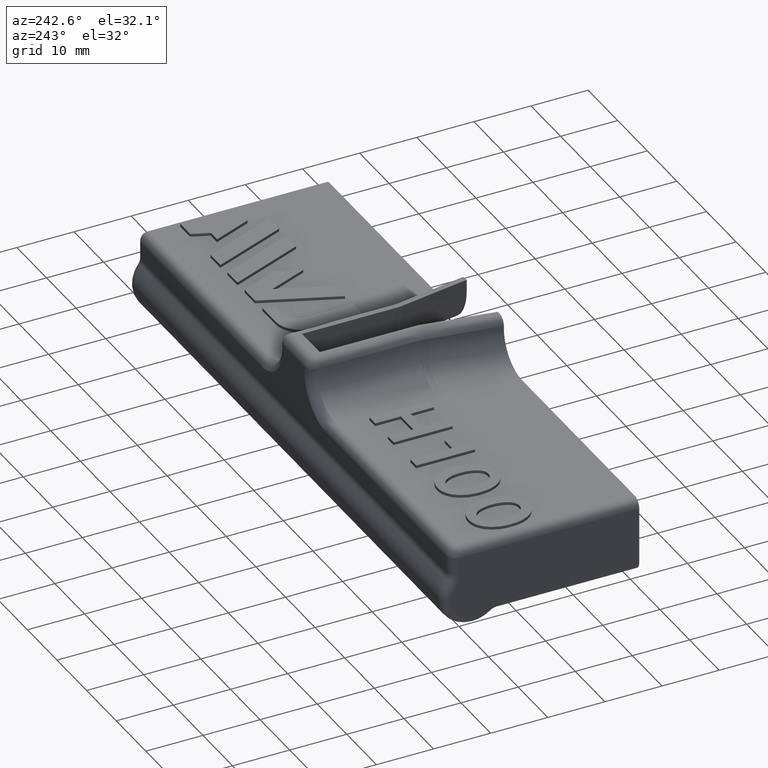
[diagram: clean part render]
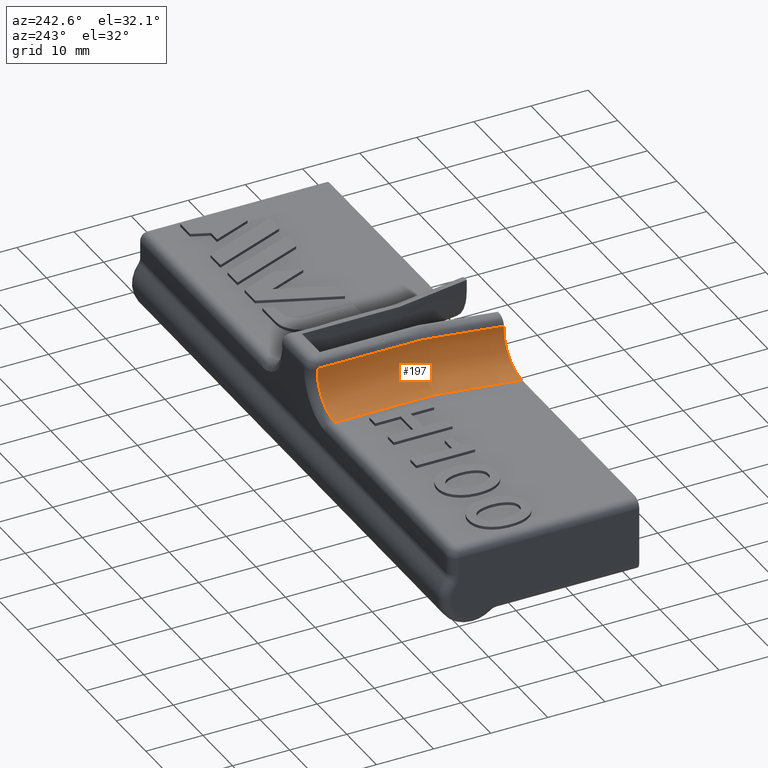
[diagram: same view with one face highlighted and labeled with its STEP entity id]
A machine part, auxiliary view. The second image highlights one B-rep face of the part: STEP entity #197.
In plain terms, the highlighted face is a freeform B-spline surface patch.
Its self-contained STEP definition (entity closure, byte-faithful):
#197=ADVANCED_FACE('',(#412,#413,#414,#415),#416,.T.);
#412=FACE_BOUND('',#1137,.T.);
#413=FACE_BOUND('',#1138,.T.);
#414=FACE_BOUND('',#1139,.T.);
#415=FACE_OUTER_BOUND('',#1140,.T.);
#416=B_SPLINE_SURFACE_WITH_KNOTS('',3,3,((#1141,#1142,#1143,#1144,#1145,#1146,#1147,#1148,#1149,#1150,#1151,#1152,#1153),(#1154,#1155,#1156,#1157,#1158,#1159,#1160,#1161,#1162,#1163,#1164,#1165,#1166),(#1167,#1168,#1169,#1170,#1171,#1172,#1173,#1174,#1175,#1176,#1177,#1178,#1179),(#1180,#1181,#1182,#1183,#1184,#1185,#1186,#1187,#1188,#1189,#1190,#1191,#1192),(#1193,#1194,#1195,#1196,#1197,#1198,#1199,#1200,#1201,#1202,#1203,#1204,#1205),(#1206,#1207,#1208,#1209,#1210,#1211,#1212,#1213,#1214,#1215,#1216,#1217,#1218),(#1219,#1220,#1221,#1222,#1223,#1224,#1225,#1226,#1227,#1228,#1229,#1230,#1231),(#1232,#1233,#1234,#1235,#1236,#1237,#1238,#1239,#1240,#1241,#1242,#1243,#1244),(#1245,#1246,#1247,#1248,#1249,#1250,#1251,#1252,#1253,#1254,#1255,#1256,#1257),(#1258,#1259,#1260,#1261,#1262,#1263,#1264,#1265,#1266,#1267,#1268,#1269,#1270)),.UNSPECIFIED.,.F.,.F.,.F.,(4,3,1,1,1,4),(4,3,1,1,1,3,4),(0.14996038561284,0.2,0.4,0.6,0.8,1.0),(0.0758671364534581,1.0,2.0,3.0,4.0,5.0,5.77251360552884),.UNSPECIFIED.);
#1137=VERTEX_LOOP('',#2431);
#1138=VERTEX_LOOP('',#2432);
#1139=VERTEX_LOOP('',#2433);
#1140=EDGE_LOOP('',(#2434,#2435,#2436,#2437,#2438));
#1141=CARTESIAN_POINT('',(-5.0,31.5490324146694,12.5003961438716));
#1142=CARTESIAN_POINT('',(-5.0,25.6576504881993,12.5003961438716));
#1143=CARTESIAN_POINT('',(-5.0,19.7662685617293,12.5003961438716));
#1144=CARTESIAN_POINT('',(-5.0,13.8748866352593,12.5003961438716));
#1145=CARTESIAN_POINT('',(-5.0,13.7294425338559,12.5003961438716));
#1146=CARTESIAN_POINT('',(-5.00634720316462,13.4385543310491,12.5003961438716));
#1147=CARTESIAN_POINT('',(-5.0348914940124,13.0030526101796,12.5003961438716));
#1148=CARTESIAN_POINT('',(-5.08240493528108,12.5692104749286,12.5003961438716));
#1149=CARTESIAN_POINT('',(-5.12666636671683,12.2816393372819,12.5003961438716));
#1150=CARTESIAN_POINT('',(-5.15192246987793,12.1384048585899,12.5003961438716));
#1151=CARTESIAN_POINT('',(-5.92664267494364,7.74474824431025,12.5003961438716));
#1152=CARTESIAN_POINT('',(-6.70136288000936,3.35109163003056,12.5003961438716));
#1153=CARTESIAN_POINT('',(-7.47608308507507,-1.04256498424913,12.5003961438716));
#1154=CARTESIAN_POINT('',(-5.0,31.5490324146694,12.3335974292477));
#1155=CARTESIAN_POINT('',(-5.0,25.6576504881993,12.3335974292477));
#1156=CARTESIAN_POINT('',(-5.0,19.7662685617293,12.3335974292477));
#1157=CARTESIAN_POINT('',(-5.0,13.8748866352593,12.3335974292477));
#1158=CARTESIAN_POINT('',(-5.0,13.7294425338559,12.3335974292477));
#1159=CARTESIAN_POINT('',(-5.00634720316462,13.4385543310491,12.3335974292477));
#1160=CARTESIAN_POINT('',(-5.03489149401241,13.0030526101796,12.3335974292477));
#1161=CARTESIAN_POINT('',(-5.08240493528108,12.5692104749286,12.3335974292477));
#1162=CARTESIAN_POINT('',(-5.12666636671683,12.2816393372819,12.3335974292477));
#1163=CARTESIAN_POINT('',(-5.15192246987793,12.1384048585899,12.3335974292477));
#1164=CARTESIAN_POINT('',(-5.92664267494364,7.74474824431025,12.3335974292477));
#1165=CARTESIAN_POINT('',(-6.70136288000936,3.35109163003056,12.3335974292477));
#1166=CARTESIAN_POINT('',(-7.47608308507507,-1.04256498424913,12.3335974292477));
#1167=CARTESIAN_POINT('',(-5.0,31.5490324146694,12.1667987146239));
#1168=CARTESIAN_POINT('',(-5.0,25.6576504881993,12.1667987146239));
#1169=CARTESIAN_POINT('',(-5.0,19.7662685617293,12.1667987146239));
#1170=CARTESIAN_POINT('',(-5.0,13.8748866352593,12.1667987146239));
#1171=CARTESIAN_POINT('',(-5.0,13.7294425338559,12.1667987146239));
#1172=CARTESIAN_POINT('',(-5.00634720316462,13.4385543310491,12.1667987146239));
#1173=CARTESIAN_POINT('',(-5.03489149401241,13.0030526101796,12.1667987146239));
#1174=CARTESIAN_POINT('',(-5.08240493528108,12.5692104749286,12.1667987146239));
#1175=CARTESIAN_POINT('',(-5.12666636671683,12.2816393372819,12.1667987146239));
#1176=CARTESIAN_POINT('',(-5.15192246987793,12.1384048585899,12.1667987146239));
#1177=CARTESIAN_POINT('',(-5.92664267494364,7.74474824431025,12.1667987146239));
#1178=CARTESIAN_POINT('',(-6.70136288000936,3.35109163003056,12.1667987146239));
#1179=CARTESIAN_POINT('',(-7.47608308507507,-1.04256498424913,12.1667987146239));
#1180=CARTESIAN_POINT('',(-5.0,31.5490324146694,12.0));
#1181=CARTESIAN_POINT('',(-5.0,25.6576504881993,12.0));
#1182=CARTESIAN_POINT('',(-5.0,19.7662685617293,12.0));
#1183=CARTESIAN_POINT('',(-5.0,13.8748866352593,12.0));
#1184=CARTESIAN_POINT('',(-5.0,13.7294425338559,12.0));
#1185=CARTESIAN_POINT('',(-5.00634720316462,13.4385543310491,12.0));
#1186=CARTESIAN_POINT('',(-5.03489149401241,13.0030526101796,12.0));
#1187=CARTESIAN_POINT('',(-5.08240493528108,12.5692104749286,12.0));
#1188=CARTESIAN_POINT('',(-5.12666636671683,12.2816393372819,12.0));
#1189=CARTESIAN_POINT('',(-5.15192246987793,12.1384048585899,12.0));
#1190=CARTESIAN_POINT('',(-5.92664267494364,7.74474824431025,12.0));
#1191=CARTESIAN_POINT('',(-6.70136288000936,3.35109163003056,12.0));
#1192=CARTESIAN_POINT('',(-7.47608308507507,-1.04256498424913,12.0));
#1193=CARTESIAN_POINT('',(-5.0,31.5490324146694,11.21470752517));
#1194=CARTESIAN_POINT('',(-5.0,25.6576504881993,11.21470752517));
#1195=CARTESIAN_POINT('',(-5.0,19.7662685617293,11.21470752517));
#1196=CARTESIAN_POINT('',(-5.0,13.8748866352593,11.21470752517));
#1197=CARTESIAN_POINT('',(-5.0,13.7294425338559,11.21470752517));
#1198=CARTESIAN_POINT('',(-5.00634720316463,13.4385543310491,11.21470752517));
#1199=CARTESIAN_POINT('',(-5.03489149401241,13.0030526101796,11.21470752517));
#1200=CARTESIAN_POINT('',(-5.08240493528109,12.5692104749286,11.21470752517));
#1201=CARTESIAN_POINT('',(-5.12666636671684,12.2816393372819,11.21470752517));
#1202=CARTESIAN_POINT('',(-5.15192246987794,12.1384048585899,11.21470752517));
#1203=CARTESIAN_POINT('',(-5.92664267494365,7.74474824431025,11.21470752517));
#1204=CARTESIAN_POINT('',(-6.70136288000937,3.35109163003056,11.21470752517));
#1205=CARTESIAN_POINT('',(-7.47608308507508,-1.04256498424913,11.21470752517));
#1206=CARTESIAN_POINT('',(-5.31240877050774,31.5490324146694,9.64412257551001));
#1207=CARTESIAN_POINT('',(-5.31240877050774,25.6576504881993,9.64412257551001));
#1208=CARTESIAN_POINT('',(-5.31240877050774,19.7662685617293,9.64412257551001));
#1209=CARTESIAN_POINT('',(-5.31240877050774,13.8748866352593,9.64412257551001));
#1210=CARTESIAN_POINT('',(-5.31240877050774,13.7339870562708,9.64412257551001));
#1211=CARTESIAN_POINT('',(-5.31855767700646,13.4521854254732,9.64412257551001));
#1212=CARTESIAN_POINT('',(-5.34621023929834,13.0302894711352,9.64412257551));
#1213=CARTESIAN_POINT('',(-5.39223924519851,12.6100012472887,9.64412257551001));
#1214=CARTESIAN_POINT('',(-5.43511809405757,12.3314130700598,9.64412257551001));
#1215=CARTESIAN_POINT('',(-5.45958504918296,12.1926540722758,9.64412257551001));
#1216=CARTESIAN_POINT('',(-6.23430525424867,7.79899745799608,9.64412257551002));
#1217=CARTESIAN_POINT('',(-7.00902545931439,3.40534084371639,9.64412257551001));
#1218=CARTESIAN_POINT('',(-7.78374566438011,-0.988315770563292,9.64412257551001));
#1219=CARTESIAN_POINT('',(-6.64690613281665,31.5490324146694,7.64690613281662));
#1220=CARTESIAN_POINT('',(-6.64690613281665,25.6576504881993,7.64690613281662));
#1221=CARTESIAN_POINT('',(-6.64690613281665,19.7662685617293,7.64690613281662));
#1222=CARTESIAN_POINT('',(-6.64690613281665,13.8748866352593,7.64690613281662));
#1223=CARTESIAN_POINT('',(-6.64690613281665,13.7533996136256,7.64690613281662));
#1224=CARTESIAN_POINT('',(-6.65220798762356,13.5104125345422,7.64690613281662));
#1225=CARTESIAN_POINT('',(-6.67605140779752,13.146635497669,7.64690613281661));
#1226=CARTESIAN_POINT('',(-6.71573944228201,12.7842446849257,7.64690613281662));
#1227=CARTESIAN_POINT('',(-6.75271239804223,12.5440284681373,7.64690613281662));
#1228=CARTESIAN_POINT('',(-6.77380839795912,12.424387107342,7.64690613281662));
#1229=CARTESIAN_POINT('',(-7.54852860302483,8.03073049306235,7.64690613281662));
#1230=CARTESIAN_POINT('',(-8.32324880809055,3.63707387878266,7.64690613281662));
#1231=CARTESIAN_POINT('',(-9.09796901315626,-0.756582735497025,7.64690613281662));
#1232=CARTESIAN_POINT('',(-8.64412257551004,31.5490324146694,6.31240877050773));
#1233=CARTESIAN_POINT('',(-8.64412257551004,25.6576504881993,6.31240877050773));
#1234=CARTESIAN_POINT('',(-8.64412257551004,19.7662685617293,6.31240877050773));
#1235=CARTESIAN_POINT('',(-8.64412257551004,13.8748866352593,6.31240877050773));
#1236=CARTESIAN_POINT('',(-8.64412257551004,13.7824525588309,6.31240877050772));
#1237=CARTESIAN_POINT('',(-8.6481567278737,13.5975555615182,6.31240877050772));
#1238=CARTESIAN_POINT('',(-8.66629936400319,13.3207596314426,6.31240877050772));
#1239=CARTESIAN_POINT('',(-8.69649746412607,13.0450184177998,6.31240877050773));
#1240=CARTESIAN_POINT('',(-8.72463162624089,12.8622298981315,6.31240877050772));
#1241=CARTESIAN_POINT('',(-8.74068263516703,12.7712001030222,6.31240877050772));
#1242=CARTESIAN_POINT('',(-9.51540284023274,8.37754348874249,6.31240877050773));
#1243=CARTESIAN_POINT('',(-10.2901230452985,3.9838868744628,6.31240877050773));
#1244=CARTESIAN_POINT('',(-11.0648432503642,-0.409769739816884,6.31240877050772));
#1245=CARTESIAN_POINT('',(-10.21470752517,31.5490324146694,6.0));
#1246=CARTESIAN_POINT('',(-10.21470752517,25.6576504881993,6.0));
#1247=CARTESIAN_POINT('',(-10.21470752517,19.7662685617293,6.0));
#1248=CARTESIAN_POINT('',(-10.21470752517,13.8748866352593,6.0));
#1249=CARTESIAN_POINT('',(-10.21470752517,13.80529941584,6.0));
#1250=CARTESIAN_POINT('',(-10.217744772874,13.6660837008378,6.0));
#1251=CARTESIAN_POINT('',(-10.2314043868182,13.4576885781664,6.0));
#1252=CARTESIAN_POINT('',(-10.2541397263894,13.2500874786004,6.0));
#1253=CARTESIAN_POINT('',(-10.2753231765154,13.1124593505965,6.0));
#1254=CARTESIAN_POINT('',(-10.2874068703565,13.0439293174018,6.0));
#1255=CARTESIAN_POINT('',(-11.0621270754222,8.65027270312205,6.0));
#1256=CARTESIAN_POINT('',(-11.8368472804879,4.25661608884236,6.0));
#1257=CARTESIAN_POINT('',(-12.6115674855536,-0.137040525437321,6.0));
#1258=CARTESIAN_POINT('',(-11.0,31.5490324146694,6.0));
#1259=CARTESIAN_POINT('',(-11.0,25.6576504881993,6.0));
#1260=CARTESIAN_POINT('',(-11.0,19.7662685617293,6.0));
#1261=CARTESIAN_POINT('',(-11.0,13.8748866352593,6.0));
#1262=CARTESIAN_POINT('',(-11.0,13.8167228443446,6.0));
#1263=CARTESIAN_POINT('',(-11.0025387953742,13.7003477704976,6.0));
#1264=CARTESIAN_POINT('',(-11.0139568982257,13.5261530515283,6.0));
#1265=CARTESIAN_POINT('',(-11.0329608575211,13.3526220090007,6.0));
#1266=CARTESIAN_POINT('',(-11.0506689516526,13.237574076829,6.0));
#1267=CARTESIAN_POINT('',(-11.0607689879512,13.1802939245915,6.0));
#1268=CARTESIAN_POINT('',(-11.8354891930169,8.78663731031184,6.0));
#1269=CARTESIAN_POINT('',(-12.6102093980826,4.39298069603215,6.0));
#1270=CARTESIAN_POINT('',(-13.3849296031483,-0.00067591824754254,6.0));
#2431=VERTEX_POINT('',#3073);
#2432=VERTEX_POINT('',#3074);
#2433=VERTEX_POINT('',#3075);
#2434=ORIENTED_EDGE('',*,*,#2970,.T.);
#2435=ORIENTED_EDGE('',*,*,#3050,.T.);
#2436=ORIENTED_EDGE('',*,*,#2987,.F.);
#2437=ORIENTED_EDGE('',*,*,#2990,.T.);
#2438=ORIENTED_EDGE('',*,*,#3076,.T.);
#2970=EDGE_CURVE('',#3353,#3344,#3356,.T.);
#2987=EDGE_CURVE('',#3381,#3323,#3382,.T.);
#2990=EDGE_CURVE('',#3381,#3385,#3387,.F.);
#3050=EDGE_CURVE('',#3344,#3323,#3477,.T.);
#3073=CARTESIAN_POINT('',(-8.70389940580916,30.0,6.4567228049324));
#3074=CARTESIAN_POINT('',(-6.7573593128816,30.0,7.75735931287983));
#3075=CARTESIAN_POINT('',(-5.4567228049314,30.0,9.70389940581159));
#3076=EDGE_CURVE('',#3385,#3353,#3506,.T.);
#3323=VERTEX_POINT('',#4077);
#3344=VERTEX_POINT('',#4156);
#3353=VERTEX_POINT('',#4165);
#3356=B_SPLINE_CURVE_WITH_KNOTS('',3,(#4195,#4196,#4197,#4198,#4199,#4200,#4201,#4202,#4203,#4204,#4205,#4206,#4207),.UNSPECIFIED.,.F.,.F.,(4,3,1,1,1,3,4),(1.37151574819416E-17,0.00399963374464819,0.00962175016590246,0.0152438665871567,0.020865983008411,0.0264880994296653,0.0316692681571177),.UNSPECIFIED.);
#3381=VERTEX_POINT('',#4312);
#3382=B_SPLINE_CURVE_WITH_KNOTS('',1,(#4313,#4314),.UNSPECIFIED.,.F.,.F.,(2,2),(0.0,0.921574682430469),.UNSPECIFIED.);
#3385=VERTEX_POINT('',#4318);
#3387=B_SPLINE_CURVE_WITH_KNOTS('',3,(#4321,#4322,#4323,#4324,#4325,#4326,#4327,#4328,#4329,#4330),.UNSPECIFIED.,.F.,.F.,(4,3,1,1,1,4),(0.0379210014763866,0.166666666666666,0.333333333333333,0.499999999999999,0.666666666666666,0.83203125),.UNSPECIFIED.);
#3477=B_SPLINE_CURVE_WITH_KNOTS('',3,(#4496,#4497,#4498,#4499,#4500,#4501,#4502,#4503,#4504,#4505),.UNSPECIFIED.,.F.,.F.,(4,3,1,1,1,4),(0.0,0.000586530332928031,0.00293265166464008,0.00527877299635214,0.00762489432806419,0.00997101565977624),.UNSPECIFIED.);
#3506=B_SPLINE_CURVE_WITH_KNOTS('',3,(#4667,#4668,#4669,#4670,#4671,#4672,#4673,#4674,#4675,#4676,#4677,#4678,#4679,#4680,#4681,#4682,#4683,#4684,#4685,#4686,#4687,#4688,#4689,#4690,#4691,#4692,#4693,#4694),.UNSPECIFIED.,.F.,.F.,(4,2,2,2,2,2,2,2,2,2,2,2,2,4),(0.0,0.00124229490939839,0.00186344236409758,0.00248458981879677,0.00372688472819516,0.00434803218289436,0.00496917963759356,0.00621147454699195,0.00683262200169115,0.00745376945639035,0.00869606436578875,0.00931721182048794,0.00962778554783754,0.00993835927518714),.UNSPECIFIED.);
#4077=CARTESIAN_POINT('',(-11.0,31.5,6.0));
#4156=CARTESIAN_POINT('',(-5.0,31.5,12.5));
#4165=CARTESIAN_POINT('',(-7.29225074921006,-1.38777878078145E-14,12.5));
#4195=CARTESIAN_POINT('',(-7.29225074921006,-2.64545330086463E-14,12.5));
#4196=CARTESIAN_POINT('',(-6.57880798943268,4.0461349528633,12.5));
#4197=CARTESIAN_POINT('',(-5.8653652296553,8.09226990572662,12.5));
#4198=CARTESIAN_POINT('',(-5.15192246987793,12.1384048585899,12.5));
#4199=CARTESIAN_POINT('',(-5.12666636671683,12.2816393372819,12.5));
#4200=CARTESIAN_POINT('',(-5.08240493528108,12.5692104749286,12.5));
#4201=CARTESIAN_POINT('',(-5.0348914940124,13.0030526101796,12.5));
#4202=CARTESIAN_POINT('',(-5.00634720316462,13.4385543310491,12.5));
#4203=CARTESIAN_POINT('',(-5.0,13.7294425338559,12.5));
#4204=CARTESIAN_POINT('',(-5.0,13.8748866352593,12.5));
#4205=CARTESIAN_POINT('',(-5.0,19.7499244235061,12.5));
#4206=CARTESIAN_POINT('',(-5.0,25.6249622117531,12.5));
#4207=CARTESIAN_POINT('',(-5.0,31.5,12.5));
#4312=CARTESIAN_POINT('',(-11.0,13.8735234171017,6.0));
#4313=CARTESIAN_POINT('',(-11.0,13.8735234171017,6.0));
#4314=CARTESIAN_POINT('',(-11.0,31.5,6.0));
#4318=CARTESIAN_POINT('',(-13.3848104205245,-3.46944695195361E-15,6.0));
#4321=CARTESIAN_POINT('',(-13.3848104205245,-1.60461921527855E-14,6.0));
#4322=CARTESIAN_POINT('',(-12.6101299430001,4.39343130819716,6.0));
#4323=CARTESIAN_POINT('',(-11.8354494654756,8.78686261639434,6.0));
#4324=CARTESIAN_POINT('',(-11.0607689879512,13.1802939245915,6.0));
#4325=CARTESIAN_POINT('',(-11.0506689516526,13.237574076829,6.0));
#4326=CARTESIAN_POINT('',(-11.0329608575211,13.3526220090007,6.0));
#4327=CARTESIAN_POINT('',(-11.0139568982257,13.5261530515283,6.0));
#4328=CARTESIAN_POINT('',(-11.0025685300171,13.699894138417,6.0));
#4329=CARTESIAN_POINT('',(-11.0000199117509,13.8158136678226,6.0));
#4330=CARTESIAN_POINT('',(-11.0000002324331,13.8735234171022,6.0));
#4496=CARTESIAN_POINT('',(-5.0,31.5,12.5));
#4497=CARTESIAN_POINT('',(-5.0,31.5,12.3333333333333));
#4498=CARTESIAN_POINT('',(-5.0,31.5,12.1666666666667));
#4499=CARTESIAN_POINT('',(-5.0,31.5,12.0));
#4500=CARTESIAN_POINT('',(-5.0,31.5,11.21470752517));
#4501=CARTESIAN_POINT('',(-5.31240877050774,31.5,9.64412257551001));
#4502=CARTESIAN_POINT('',(-6.64690613281665,31.5,7.64690613281662));
#4503=CARTESIAN_POINT('',(-8.64412257551004,31.5,6.31240877050773));
#4504=CARTESIAN_POINT('',(-10.21470752517,31.5,6.0));
#4505=CARTESIAN_POINT('',(-11.0,31.5,6.0));
#4667=CARTESIAN_POINT('',(-13.3848104205245,-1.04083408558608E-14,6.0));
#4668=CARTESIAN_POINT('',(-12.9647916759017,-1.04597783169793E-14,6.0));
#4669=CARTESIAN_POINT('',(-12.5520225746103,-5.32039714255668E-15,6.04271983297906));
#4670=CARTESIAN_POINT('',(-11.9431212151544,-5.41021132154138E-15,6.16721306796981));
#4671=CARTESIAN_POINT('',(-11.7418814353101,-1.07336351347807E-15,6.21888947580981));
#4672=CARTESIAN_POINT('',(-11.3429764659478,-1.13745118367497E-15,6.3433062107365));
#4673=CARTESIAN_POINT('',(-11.1453845123674,1.36140871230433E-14,6.4162079046013));
#4674=CARTESIAN_POINT('',(-10.5717720906842,1.35137261476842E-14,6.66211722021644));
#4675=CARTESIAN_POINT('',(-10.2098734703832,1.06978577706656E-15,6.86307128163031));
#4676=CARTESIAN_POINT('',(-9.69754452067716,9.63385882141625E-16,7.21958106871057));
#4677=CARTESIAN_POINT('',(-9.53098368699425,-7.04273116973574E-15,7.34854274195901));
#4678=CARTESIAN_POINT('',(-9.21443777232092,-7.11487003758138E-15,7.62106888673291));
#4679=CARTESIAN_POINT('',(-9.06433880664456,-4.06168652896705E-15,7.76455468011752));
#4680=CARTESIAN_POINT('',(-8.63821077423048,-4.16920061995871E-15,8.21636820708411));
#4681=CARTESIAN_POINT('',(-8.38564767264717,-1.17262540754609E-14,8.5458424020783));
#4682=CARTESIAN_POINT('',(-8.0568221472841,-1.18323036646776E-14,9.08300409966374));
#4683=CARTESIAN_POINT('',(-7.95701637671818,-7.48227164489734E-15,9.26701812477792));
#4684=CARTESIAN_POINT('',(-7.77712484557397,-7.55059212549833E-15,9.64502438046036));
#4685=CARTESIAN_POINT('',(-7.69686351137535,-3.85579492391234E-15,9.83987602643975));
#4686=CARTESIAN_POINT('',(-7.4895665294804,-3.95348382684634E-15,10.4302987215789));
#4687=CARTESIAN_POINT('',(-7.39415426632608,1.31737665258702E-14,10.8332642083014));
#4688=CARTESIAN_POINT('',(-7.31430364018018,1.30882745803139E-14,11.4515389237969));
#4689=CARTESIAN_POINT('',(-7.29833829113018,-2.75357438697846E-15,11.6606725243433));
#4690=CARTESIAN_POINT('',(-7.2913615163185,-2.79296868142491E-15,11.9753901662601));
#4691=CARTESIAN_POINT('',(-7.29225074921005,7.33545148714067E-15,12.0803167040967));
#4692=CARTESIAN_POINT('',(-7.29225074921006,7.30975456995853E-15,12.2901583520484));
#4693=CARTESIAN_POINT('',(-7.29225074921005,8.00524547851856E-15,12.3950791760242));
#4694=CARTESIAN_POINT('',(-7.29225074921005,7.99239701992749E-15,12.5));